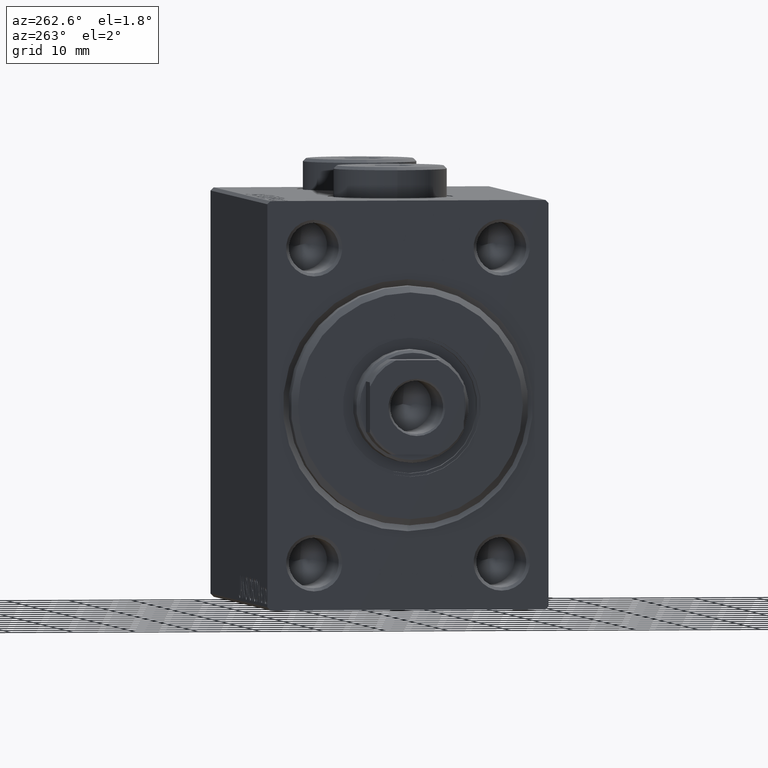
[diagram: clean part render]
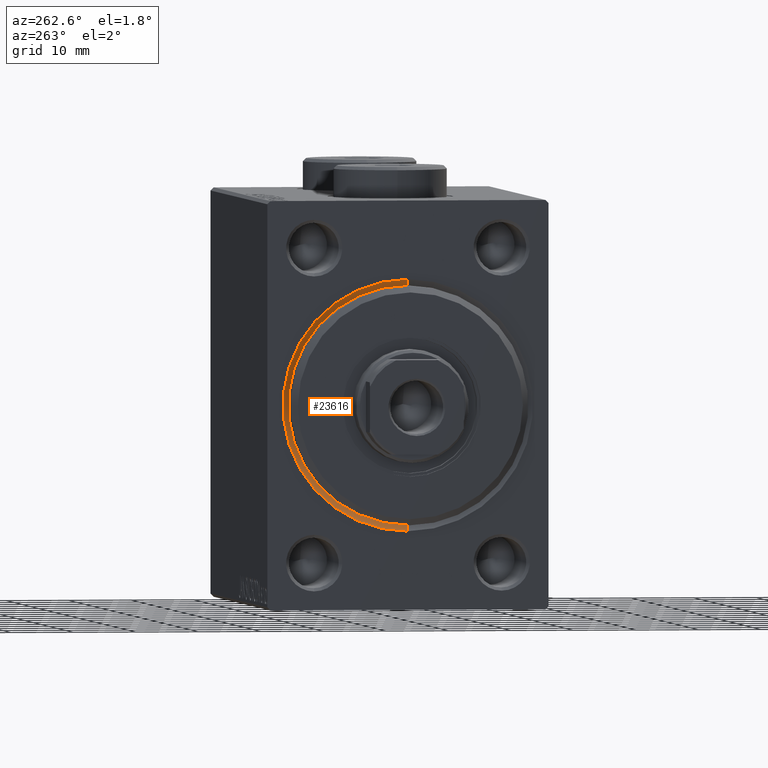
[diagram: same view with one face highlighted and labeled with its STEP entity id]
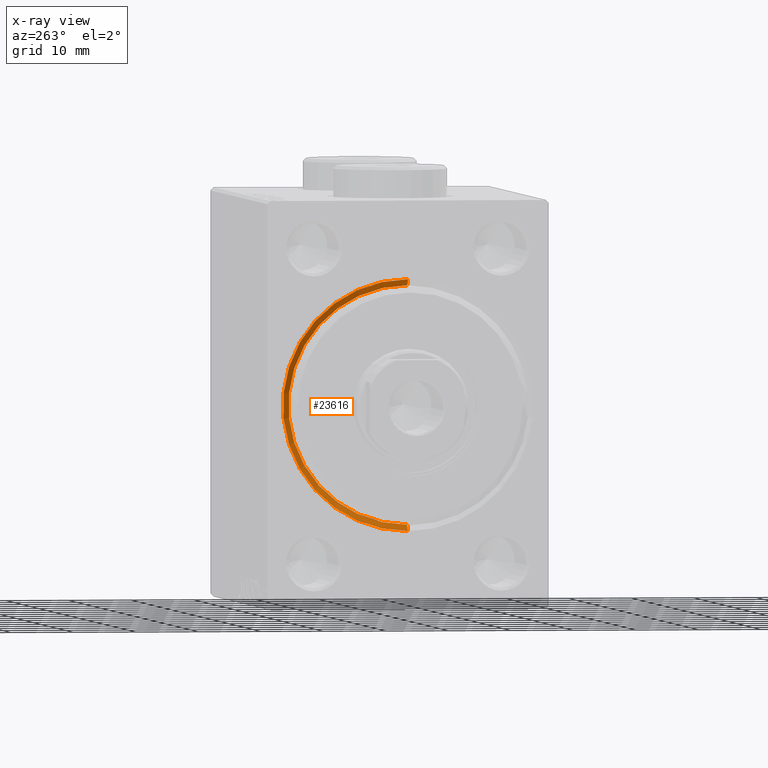
[diagram: x-ray of the same camera — body ghosted, the highlighted face saturated]
A machine part, auxiliary view. The second image highlights one B-rep face of the part: STEP entity #23616.
The next image is the same camera in x-ray: the body ghosted, the highlighted face saturated — about 0% of this face is hidden behind the body in this view.
In plain terms, the highlighted conical surface has half-angle 45 deg.
Its self-contained STEP definition (entity closure, byte-faithful):
#1033 = LINE ( 'NONE', #43215, #22608 ) ;
#1471 = EDGE_CURVE ( 'NONE', #25162, #8080, #15020, .T. ) ;
#2235 = DIRECTION ( 'NONE',  ( 0.000000000000000000, 0.000000000000000000, -1.000000000000000000 ) ) ;
#4003 = CONICAL_SURFACE ( 'NONE', #9895, 19.00000000000000000, 0.7853981633974500554 ) ;
#4472 = ORIENTED_EDGE ( 'NONE', *, *, #8095, .F. ) ;
#5628 = DIRECTION ( 'NONE',  ( -1.000000000000000000, 0.000000000000000000, 0.000000000000000000 ) ) ;
#6338 = EDGE_LOOP ( 'NONE', ( #4472, #14851, #45581, #33545 ) ) ;
#6584 = CARTESIAN_POINT ( 'NONE',  ( 1.000000000000000888, 0.000000000000000000, 0.000000000000000000 ) ) ;
#7790 = EDGE_CURVE ( 'NONE', #25162, #20545, #40770, .T. ) ;
#8080 = VERTEX_POINT ( 'NONE', #34508 ) ;
#8095 = EDGE_CURVE ( 'NONE', #8080, #13249, #1033, .T. ) ;
#8632 = CARTESIAN_POINT ( 'NONE',  ( 1.000000000000000888, 0.000000000000000000, 0.000000000000000000 ) ) ;
#9895 = AXIS2_PLACEMENT_3D ( 'NONE', #6584, #44863, #16949 ) ;
#12307 = DIRECTION ( 'NONE',  ( 0.000000000000000000, 0.000000000000000000, -1.000000000000000000 ) ) ;
#12852 = CARTESIAN_POINT ( 'NONE',  ( 1.000000000000000888, 0.000000000000000000, 19.00000000000000000 ) ) ;
#13249 = VERTEX_POINT ( 'NONE', #19460 ) ;
#14619 = DIRECTION ( 'NONE',  ( -0.7071067811865463515, 8.659560562354948882E-17, -0.7071067811865487940 ) ) ;
#14851 = ORIENTED_EDGE ( 'NONE', *, *, #1471, .F. ) ;
#15020 = CIRCLE ( 'NONE', #26809, 19.00000000000000000 ) ;
#16949 = DIRECTION ( 'NONE',  ( 0.000000000000000000, 0.000000000000000000, 1.000000000000000000 ) ) ;
#19460 = CARTESIAN_POINT ( 'NONE',  ( 0.000000000000000000, 2.449293598294706907E-15, -20.00000000000000355 ) ) ;
#19503 = DIRECTION ( 'NONE',  ( 1.000000000000000000, 0.000000000000000000, 0.000000000000000000 ) ) ;
#20545 = VERTEX_POINT ( 'NONE', #37302 ) ;
#22608 = VECTOR ( 'NONE', #14619, 1000.000000000000000 ) ;
#23616 = ADVANCED_FACE ( 'NONE', ( #40970 ), #4003, .F. ) ;
#25162 = VERTEX_POINT ( 'NONE', #28065 ) ;
#26170 = EDGE_CURVE ( 'NONE', #13249, #20545, #28384, .T. ) ;
#26809 = AXIS2_PLACEMENT_3D ( 'NONE', #8632, #5628, #12307 ) ;
#26931 = DIRECTION ( 'NONE',  ( -0.7071067811865463515, 0.000000000000000000, 0.7071067811865487940 ) ) ;
#28065 = CARTESIAN_POINT ( 'NONE',  ( 1.000000000000000888, 0.000000000000000000, 19.00000000000000000 ) ) ;
#28384 = CIRCLE ( 'NONE', #40890, 20.00000000000000355 ) ;
#33545 = ORIENTED_EDGE ( 'NONE', *, *, #26170, .F. ) ;
#34508 = CARTESIAN_POINT ( 'NONE',  ( 1.000000000000000888, 2.326828918379970970E-15, -19.00000000000000000 ) ) ;
#37302 = CARTESIAN_POINT ( 'NONE',  ( 0.000000000000000000, 0.000000000000000000, 20.00000000000000355 ) ) ;
#40770 = LINE ( 'NONE', #12852, #42465 ) ;
#40890 = AXIS2_PLACEMENT_3D ( 'NONE', #44398, #19503, #2235 ) ;
#40970 = FACE_OUTER_BOUND ( 'NONE', #6338, .T. ) ;
#42465 = VECTOR ( 'NONE', #26931, 1000.000000000000000 ) ;
#43215 = CARTESIAN_POINT ( 'NONE',  ( 1.000000000000000888, 2.326828918379970970E-15, -19.00000000000000000 ) ) ;
#44398 = CARTESIAN_POINT ( 'NONE',  ( 0.000000000000000000, 0.000000000000000000, 0.000000000000000000 ) ) ;
#44863 = DIRECTION ( 'NONE',  ( -1.000000000000000000, 0.000000000000000000, 0.000000000000000000 ) ) ;
#45581 = ORIENTED_EDGE ( 'NONE', *, *, #7790, .T. ) ;